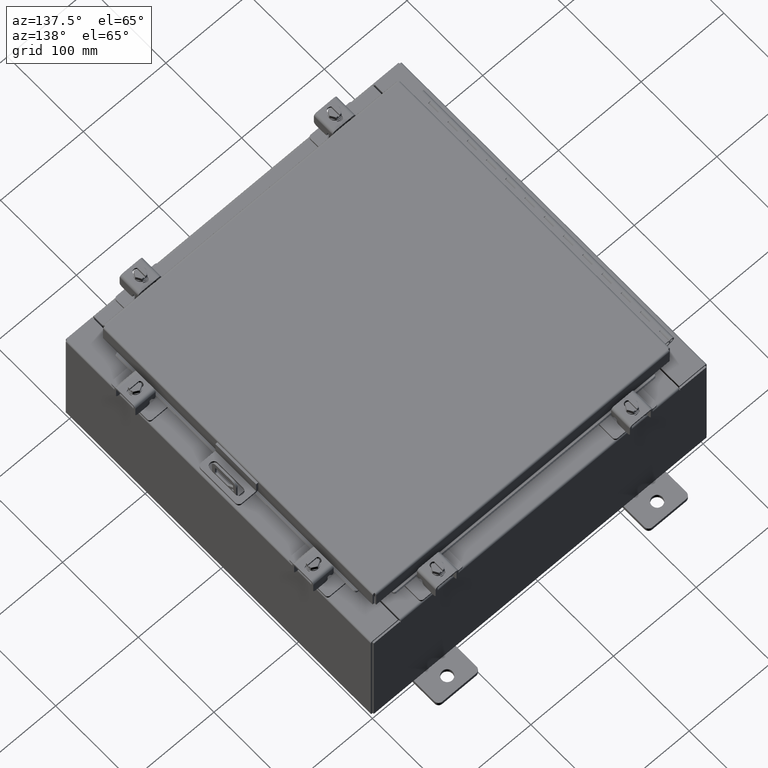
[diagram: clean part render]
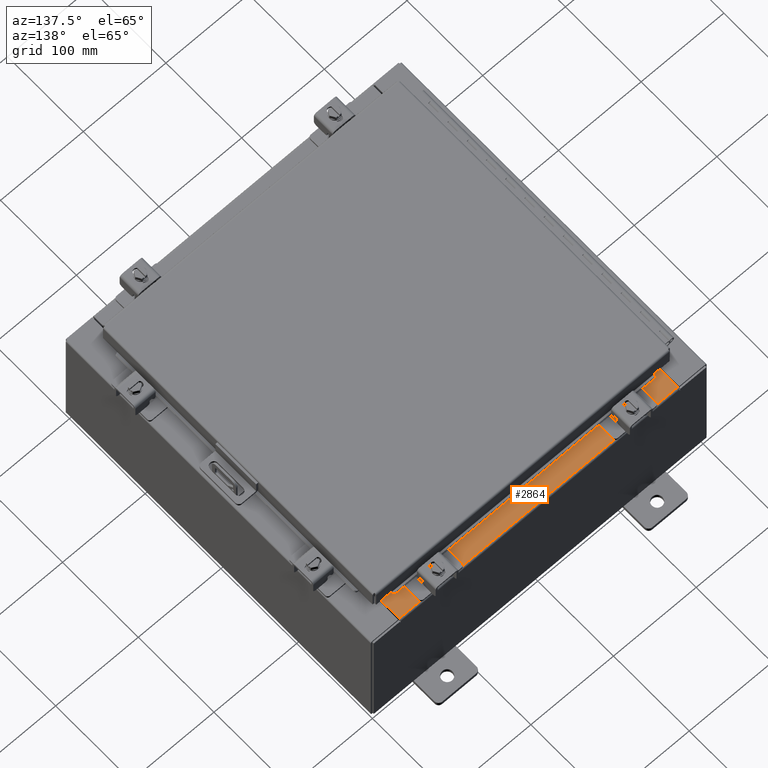
[diagram: same view with one face highlighted and labeled with its STEP entity id]
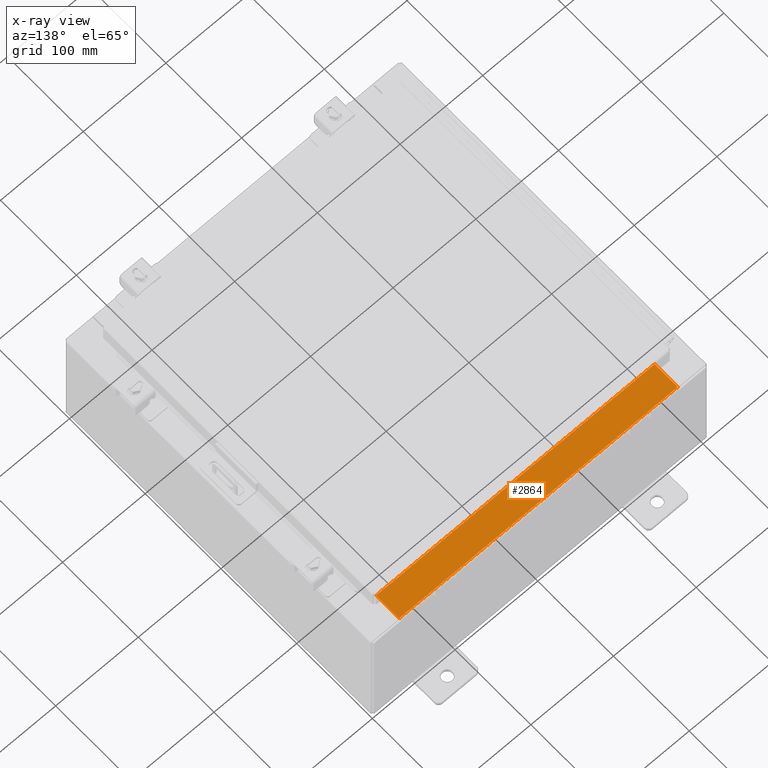
[diagram: x-ray of the same camera — body ghosted, the highlighted face saturated]
A machine part, auxiliary view. The second image highlights one B-rep face of the part: STEP entity #2864.
The next image is the same camera in x-ray: the body ghosted, the highlighted face saturated — about 0% of this face is hidden behind the body in this view.
In plain terms, the highlighted planar face has unit normal (0, 0, 1).
Its self-contained STEP definition (entity closure, byte-faithful):
#351 = DIRECTION ( 'NONE',  ( 0.0000000000000000000, 3.566381192773190000E-015, 1.000000000000000000 ) ) ;
#450 = CARTESIAN_POINT ( 'NONE',  ( 6.637200000000000000, -1.300299999999999800, 3.000000000000005300 ) ) ;
#470 = VECTOR ( 'NONE', #18552, 39.37007874015748100 ) ;
#477 = VERTEX_POINT ( 'NONE', #4260 ) ;
#676 = EDGE_CURVE ( 'NONE', #19668, #10194, #983, .T. ) ;
#983 = LINE ( 'NONE', #6791, #15851 ) ;
#2864 = ADVANCED_FACE ( 'NONE', ( #19565 ), #24539, .T. ) ;
#3257 = ORIENTED_EDGE ( 'NONE', *, *, #12434, .F. ) ;
#3596 = EDGE_CURVE ( 'NONE', #9485, #19668, #13051, .T. ) ;
#4260 = CARTESIAN_POINT ( 'NONE',  ( 6.637199999999999100, -0.08769999999999993100, 3.000000000000000900 ) ) ;
#5231 = LINE ( 'NONE', #450, #470 ) ;
#6363 = CARTESIAN_POINT ( 'NONE',  ( 0.0000000000000000000, 1.069354855923099900E-014, 3.000000000000000900 ) ) ;
#6791 = CARTESIAN_POINT ( 'NONE',  ( -6.637200000000000000, -0.07469999999999973900, 3.000000000000000900 ) ) ;
#7665 = VECTOR ( 'NONE', #13423, 39.37007874015748100 ) ;
#8884 = CARTESIAN_POINT ( 'NONE',  ( 6.637200000000000000, -1.287299999999999900, 3.000000000000005300 ) ) ;
#9372 = CARTESIAN_POINT ( 'NONE',  ( 6.637200000000000900, -1.287299999999999900, 3.000000000000005300 ) ) ;
#9485 = VERTEX_POINT ( 'NONE', #8884 ) ;
#10194 = VERTEX_POINT ( 'NONE', #23025 ) ;
#10522 = DIRECTION ( 'NONE',  ( -0.0000000000000000000, 1.000000000000000000, -3.566381192773190000E-015 ) ) ;
#12434 = EDGE_CURVE ( 'NONE', #477, #9485, #5231, .T. ) ;
#12761 = ORIENTED_EDGE ( 'NONE', *, *, #3596, .F. ) ;
#13051 = LINE ( 'NONE', #9372, #7665 ) ;
#13423 = DIRECTION ( 'NONE',  ( -1.000000000000000000, 0.0000000000000000000, 0.0000000000000000000 ) ) ;
#13718 = ORIENTED_EDGE ( 'NONE', *, *, #676, .F. ) ;
#13980 = EDGE_CURVE ( 'NONE', #477, #10194, #14001, .T. ) ;
#14001 = LINE ( 'NONE', #23167, #18702 ) ;
#14497 = DIRECTION ( 'NONE',  ( 0.0000000000000000000, -1.000000000000000000, 3.566381192773190000E-015 ) ) ;
#15521 = ORIENTED_EDGE ( 'NONE', *, *, #13980, .T. ) ;
#15554 = EDGE_LOOP ( 'NONE', ( #13718, #12761, #3257, #15521 ) ) ;
#15851 = VECTOR ( 'NONE', #10522, 39.37007874015748100 ) ;
#17144 = CARTESIAN_POINT ( 'NONE',  ( -6.637200000000000000, -1.287299999999999200, 3.000000000000005300 ) ) ;
#17778 = AXIS2_PLACEMENT_3D ( 'NONE', #6363, #351, #14497 ) ;
#18552 = DIRECTION ( 'NONE',  ( -0.0000000000000000000, -1.000000000000000000, 3.566381192773190000E-015 ) ) ;
#18702 = VECTOR ( 'NONE', #21143, 39.37007874015748100 ) ;
#19565 = FACE_OUTER_BOUND ( 'NONE', #15554, .T. ) ;
#19668 = VERTEX_POINT ( 'NONE', #17144 ) ;
#21143 = DIRECTION ( 'NONE',  ( -1.000000000000000000, 0.0000000000000000000, 0.0000000000000000000 ) ) ;
#23025 = CARTESIAN_POINT ( 'NONE',  ( -6.637200000000000000, -0.08770000000000026400, 3.000000000000000900 ) ) ;
#23167 = CARTESIAN_POINT ( 'NONE',  ( 0.0000000000000000000, -0.08770000000000026400, 3.000000000000001300 ) ) ;
#24539 = PLANE ( 'NONE',  #17778 ) ;